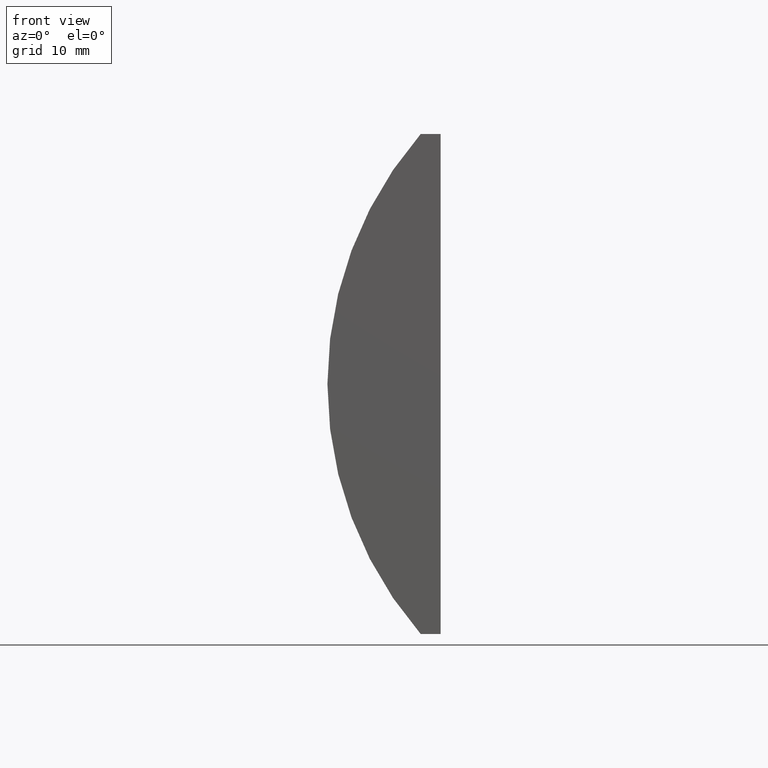
[diagram: clean part render]
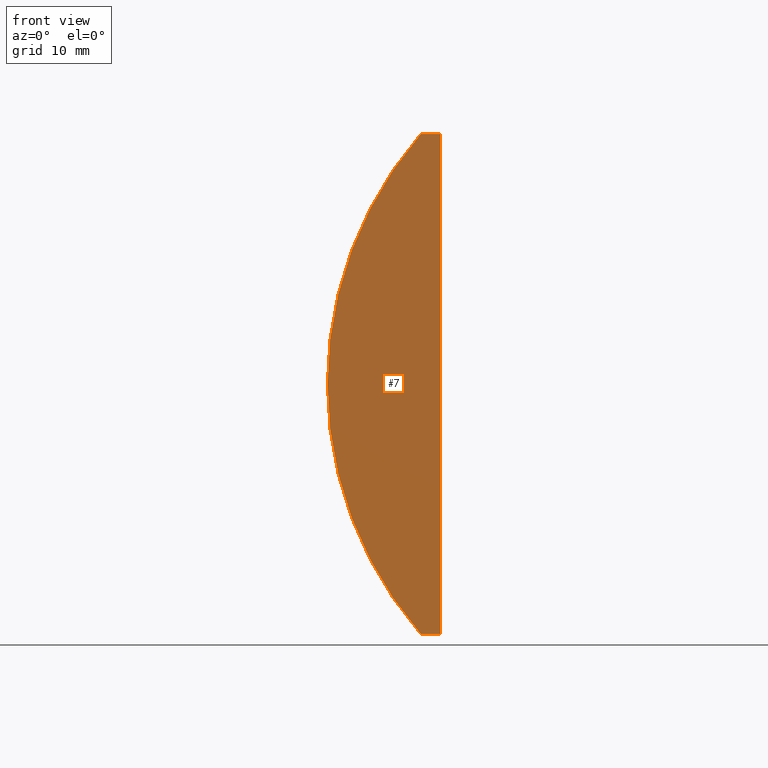
[diagram: same view with one face highlighted and labeled with its STEP entity id]
A machine part, front view. The second image highlights one B-rep face of the part: STEP entity #7.
In plain terms, the highlighted planar face has unit normal (0, 1, 0).
Its self-contained STEP definition (entity closure, byte-faithful):
#4 = VERTEX_POINT ( 'NONE', #166 ) ;
#7 = ADVANCED_FACE ( 'NONE', ( #42 ), #33, .F. ) ;
#25 = VERTEX_POINT ( 'NONE', #133 ) ;
#26 = LINE ( 'NONE', #96, #186 ) ;
#27 = EDGE_CURVE ( 'NONE', #168, #174, #76, .T. ) ;
#31 = VECTOR ( 'NONE', #183, 1000.000000000000000 ) ;
#33 = PLANE ( 'NONE',  #51 ) ;
#41 = CARTESIAN_POINT ( 'NONE',  ( -24.94886364213786900, 0.0000000000000000000, -25.39999999999999900 ) ) ;
#42 = FACE_OUTER_BOUND ( 'NONE', #66, .T. ) ;
#43 = DIRECTION ( 'NONE',  ( -1.000000000000000000, -0.0000000000000000000, -0.0000000000000000000 ) ) ;
#46 = CARTESIAN_POINT ( 'NONE',  ( 4.355204334851265500, 0.0000000000000000000, 4.286263797015675000E-017 ) ) ;
#48 = ORIENTED_EDGE ( 'NONE', *, *, #81, .F. ) ;
#51 = AXIS2_PLACEMENT_3D ( 'NONE', #184, #127, #179 ) ;
#53 = CARTESIAN_POINT ( 'NONE',  ( -24.94886364213786900, 0.0000000000000000000, 25.39999999999999900 ) ) ;
#54 = LINE ( 'NONE', #185, #31 ) ;
#65 = LINE ( 'NONE', #148, #92 ) ;
#66 = EDGE_LOOP ( 'NONE', ( #129, #48, #139, #198 ) ) ;
#74 = EDGE_CURVE ( 'NONE', #174, #4, #54, .T. ) ;
#76 = CIRCLE ( 'NONE', #176, 38.78000000000000100 ) ;
#81 = EDGE_CURVE ( 'NONE', #25, #168, #65, .T. ) ;
#92 = VECTOR ( 'NONE', #43, 1000.000000000000000 ) ;
#96 = CARTESIAN_POINT ( 'NONE',  ( -22.92479566514874600, 0.0000000000000000000, -25.39999999999999900 ) ) ;
#100 = DIRECTION ( 'NONE',  ( 0.0000000000000000000, 1.000000000000000000, 0.0000000000000000000 ) ) ;
#127 = DIRECTION ( 'NONE',  ( 0.0000000000000000000, 1.000000000000000000, 0.0000000000000000000 ) ) ;
#129 = ORIENTED_EDGE ( 'NONE', *, *, #27, .F. ) ;
#133 = CARTESIAN_POINT ( 'NONE',  ( -22.92479566514874600, 0.0000000000000000000, -25.39999999999999900 ) ) ;
#139 = ORIENTED_EDGE ( 'NONE', *, *, #160, .F. ) ;
#146 = DIRECTION ( 'NONE',  ( -2.731847993664263200E-016, -0.0000000000000000000, -1.000000000000000000 ) ) ;
#148 = CARTESIAN_POINT ( 'NONE',  ( -24.94886364213786900, 0.0000000000000000000, -25.39999999999999900 ) ) ;
#160 = EDGE_CURVE ( 'NONE', #4, #25, #26, .T. ) ;
#166 = CARTESIAN_POINT ( 'NONE',  ( -22.92479566514873200, 0.0000000000000000000, 25.39999999999999900 ) ) ;
#168 = VERTEX_POINT ( 'NONE', #41 ) ;
#174 = VERTEX_POINT ( 'NONE', #53 ) ;
#176 = AXIS2_PLACEMENT_3D ( 'NONE', #46, #100, #202 ) ;
#179 = DIRECTION ( 'NONE',  ( 0.0000000000000000000, -0.0000000000000000000, 1.000000000000000000 ) ) ;
#183 = DIRECTION ( 'NONE',  ( 1.000000000000000000, 0.0000000000000000000, 0.0000000000000000000 ) ) ;
#184 = CARTESIAN_POINT ( 'NONE',  ( 4.355204334851265500, 0.0000000000000000000, 4.286263797015675000E-017 ) ) ;
#185 = CARTESIAN_POINT ( 'NONE',  ( -24.94886364213786900, 0.0000000000000000000, 25.39999999999999900 ) ) ;
#186 = VECTOR ( 'NONE', #146, 1000.000000000000000 ) ;
#198 = ORIENTED_EDGE ( 'NONE', *, *, #74, .F. ) ;
#202 = DIRECTION ( 'NONE',  ( 0.0000000000000000000, 0.0000000000000000000, 1.000000000000000000 ) ) ;